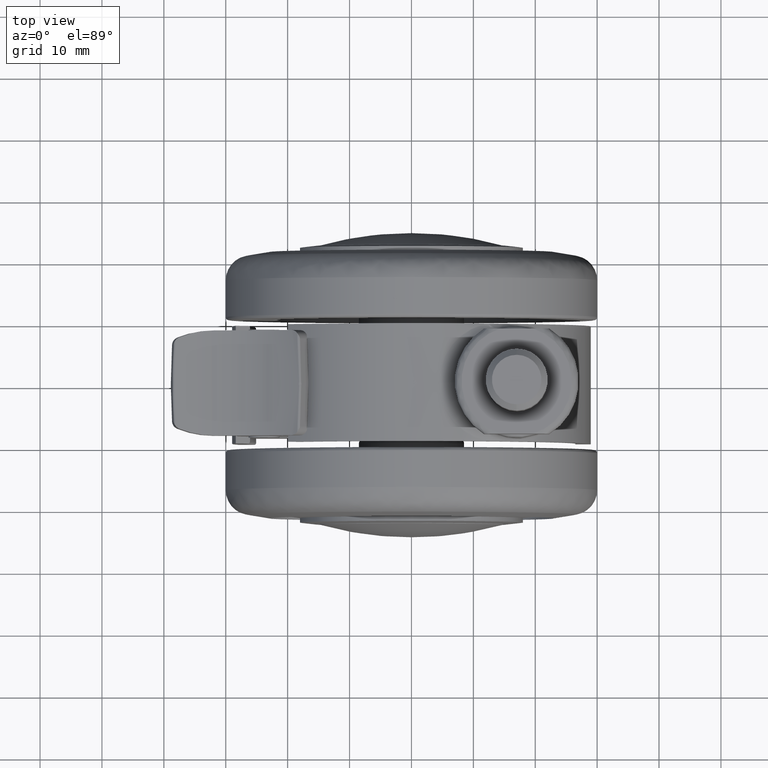
[diagram: clean part render]
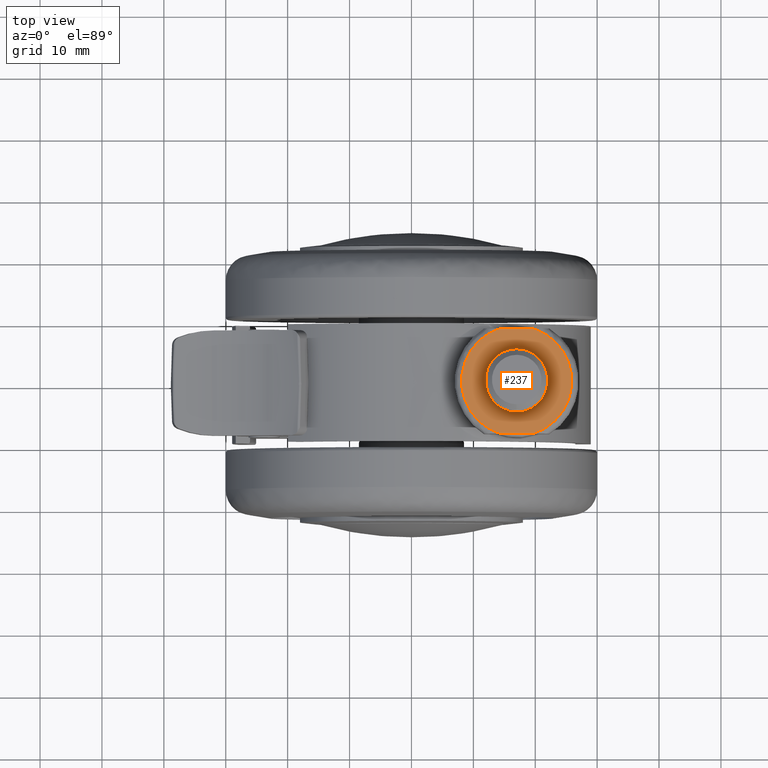
[diagram: same view with one face highlighted and labeled with its STEP entity id]
A machine part, top view. The second image highlights one B-rep face of the part: STEP entity #237.
In plain terms, the highlighted planar face has unit normal (0, 0, 1).
Its self-contained STEP definition (entity closure, byte-faithful):
#237=ADVANCED_FACE('',(#845,#846),#844,.T.);
#844=PLANE('',#3716);
#845=FACE_OUTER_BOUND('',#3717,.T.);
#846=FACE_BOUND('',#3718,.T.);
#3713=CARTESIAN_POINT('',(-6.00000000000E+00,-1.06800000000E+01,-1.02000000000E+01));
#3714=DIRECTION('',(-1.00000000000E+00,0.00000000000E+00,0.00000000000E+00));
#3715=DIRECTION('',(0.00000000000E+00,0.00000000000E+00,1.00000000000E+00));
#3716=AXIS2_PLACEMENT_3D('',#3713,#3714,#3715);
#3717=EDGE_LOOP('',(#5988,#5989,#5990,#5991));
#3718=EDGE_LOOP('',(#5992,#5993));
#5988=ORIENTED_EDGE('',*,*,#7037,.T.);
#5989=ORIENTED_EDGE('',*,*,#7038,.T.);
#5990=ORIENTED_EDGE('',*,*,#7039,.T.);
#5991=ORIENTED_EDGE('',*,*,#7040,.T.);
#5992=ORIENTED_EDGE('',*,*,#7041,.T.);
#5993=ORIENTED_EDGE('',*,*,#7042,.T.);
#7037=EDGE_CURVE('',#8181,#8182,#8183,.T.);
#7038=EDGE_CURVE('',#8182,#8189,#8190,.T.);
#7039=EDGE_CURVE('',#8189,#8196,#8197,.T.);
#7040=EDGE_CURVE('',#8196,#8181,#8203,.T.);
#7041=EDGE_CURVE('',#8209,#8210,#8211,.T.);
#7042=EDGE_CURVE('',#8210,#8209,#8217,.T.);
#8181=VERTEX_POINT('',#11789);
#8182=VERTEX_POINT('',#11790);
#8183=LINE('',#11791,#11792);
#8189=VERTEX_POINT('',#11794);
#8190=CIRCLE('',#11798,8.90000000000E+00);
#8196=VERTEX_POINT('',#11799);
#8197=LINE('',#11800,#11801);
#8203=CIRCLE('',#11806,8.90000000000E+00);
#8209=VERTEX_POINT('',#11807);
#8210=VERTEX_POINT('',#11808);
#8211=CIRCLE('',#11812,5.00000000000E+00);
#8217=CIRCLE('',#11816,5.00000000000E+00);
#11789=CARTESIAN_POINT('',(-6.00000000000E+00,2.63818119165E+00,-8.50000000000E+00));
#11790=CARTESIAN_POINT('',(-6.00000000000E+00,-2.63818119165E+00,-8.50000000000E+00));
#11791=CARTESIAN_POINT('',(-6.00000000000E+00,2.63818119165E+00,-8.50000000000E+00));
#11792=VECTOR('',#11793,5.27636238331E+00);
#11793=DIRECTION('',(0.00000000000E+00,-1.00000000000E+00,0.00000000000E+00));
#11794=CARTESIAN_POINT('',(-6.00000000000E+00,-2.63818119165E+00,8.50000000000E+00));
#11795=CARTESIAN_POINT('',(-6.00000000000E+00,0.00000000000E+00,0.00000000000E+00));
#11796=DIRECTION('',(-1.00000000000E+00,-0.00000000000E+00,0.00000000000E+00));
#11797=DIRECTION('',(-0.00000000000E+00,2.96424852995E-01,9.55056179775E-01));
#11798=AXIS2_PLACEMENT_3D('',#11795,#11796,#11797);
#11799=CARTESIAN_POINT('',(-6.00000000000E+00,2.63818119165E+00,8.50000000000E+00));
#11800=CARTESIAN_POINT('',(-6.00000000000E+00,-2.63818119165E+00,8.50000000000E+00));
#11801=VECTOR('',#11802,5.27636238331E+00);
#11802=DIRECTION('',(0.00000000000E+00,1.00000000000E+00,0.00000000000E+00));
#11803=CARTESIAN_POINT('',(-6.00000000000E+00,0.00000000000E+00,0.00000000000E+00));
#11804=DIRECTION('',(-1.00000000000E+00,0.00000000000E+00,0.00000000000E+00));
#11805=DIRECTION('',(-0.00000000000E+00,-2.96424852995E-01,-9.55056179775E-01));
#11806=AXIS2_PLACEMENT_3D('',#11803,#11804,#11805);
#11807=CARTESIAN_POINT('',(-6.00000000000E+00,0.00000000000E+00,-5.00000000000E+00));
#11808=CARTESIAN_POINT('',(-6.00000000000E+00,2.96059473233E-16,5.00000000000E+00));
#11809=CARTESIAN_POINT('',(-6.00000000000E+00,0.00000000000E+00,0.00000000000E+00));
#11810=DIRECTION('',(1.00000000000E+00,0.00000000000E+00,0.00000000000E+00));
#11811=DIRECTION('',(0.00000000000E+00,-1.22460635382E-16,-1.00000000000E+00));
#11812=AXIS2_PLACEMENT_3D('',#11809,#11810,#11811);
#11813=CARTESIAN_POINT('',(-6.00000000000E+00,0.00000000000E+00,0.00000000000E+00));
#11814=DIRECTION('',(1.00000000000E+00,0.00000000000E+00,0.00000000000E+00));
#11815=DIRECTION('',(0.00000000000E+00,-1.22460635382E-16,-1.00000000000E+00));
#11816=AXIS2_PLACEMENT_3D('',#11813,#11814,#11815);